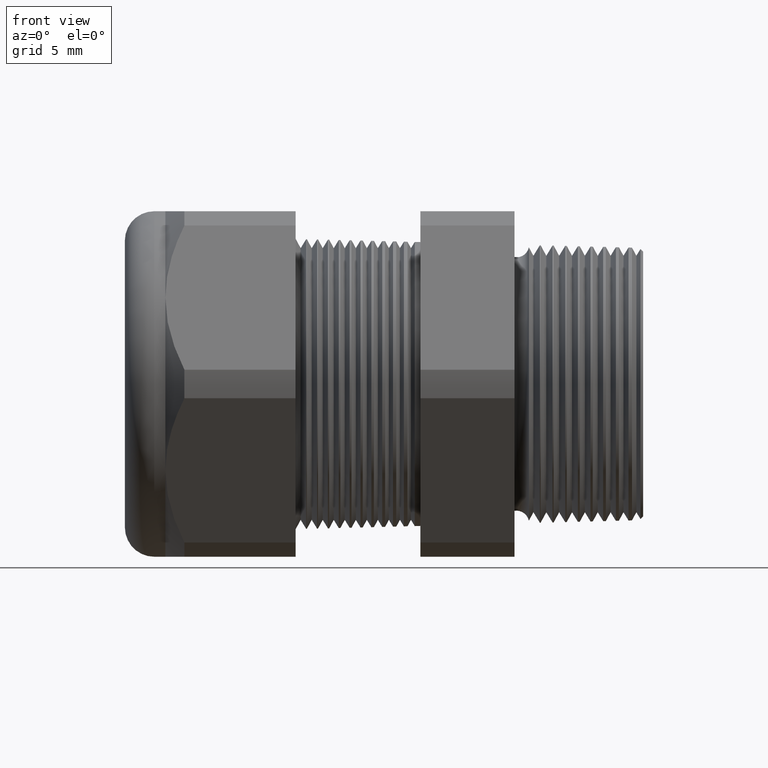
[diagram: clean part render]
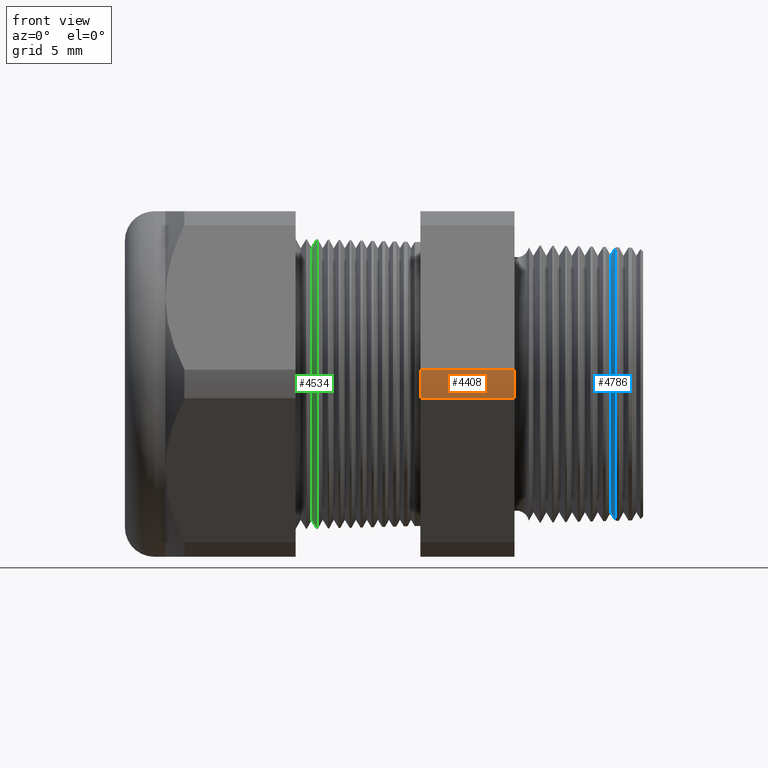
[diagram: same view with three faces highlighted in distinct colors, each labeled with its STEP entity id]
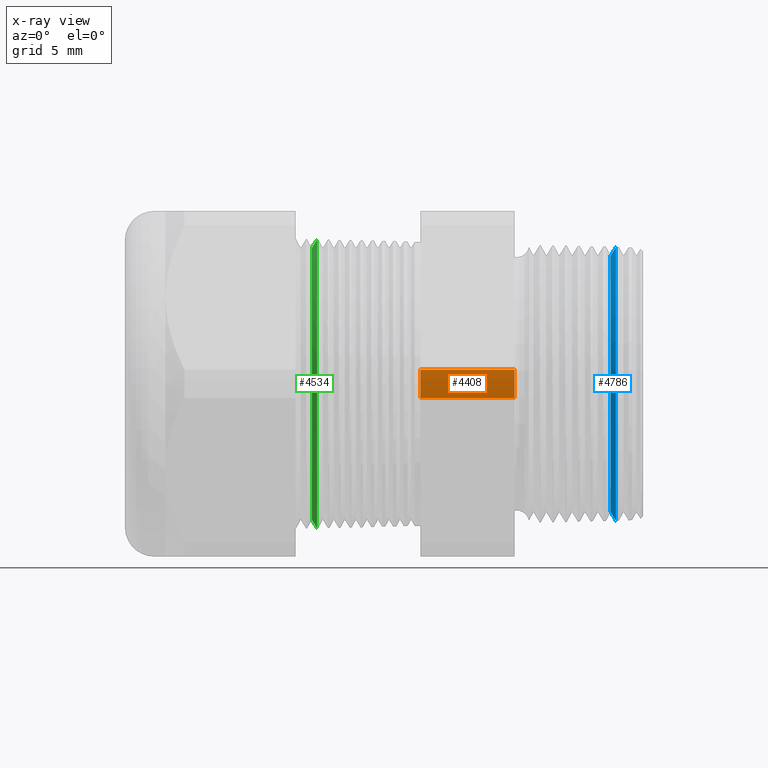
[diagram: x-ray of the same camera — body ghosted, the three highlighted faces saturated]
A machine part, front view with three faces highlighted in distinct colors.
The next image is the same camera in x-ray (body ghosted, the three faces saturated) — at least one of them is partly hidden behind the body in this view.
Their STEP definitions:

[orange] entity #4408 — the highlighted cylindrical surface (partial cylindrical patch) has radius 13.2512 mm, axis along (-1, 0, 0).
#2285 = CARTESIAN_POINT ( 'NONE',  ( -0.3100000000000000000, -0.5202473208008777700, -0.03890520787129495000 ) ) ;
#2286 = DIRECTION ( 'NONE',  ( 0.0000000000000000000, 0.0000000000000000000, -1.000000000000000000 ) ) ;
#2287 = DIRECTION ( 'NONE',  ( 1.000000000000000000, 0.0000000000000000000, 0.0000000000000000000 ) ) ;
#2288 = CARTESIAN_POINT ( 'NONE',  ( -0.3100000000000000000, 0.0000000000000000000, 0.0000000000000000000 ) ) ;
#2289 = AXIS2_PLACEMENT_3D ( 'NONE', #2288, #2287, #2286 ) ;
#2290 = CIRCLE ( 'NONE', #2289, 0.5217000000000000500 ) ;
#2291 = CARTESIAN_POINT ( 'NONE',  ( -0.3100000000000000000, -0.5202473208008777700, 0.03890520787129464500 ) ) ;
#2423 = CARTESIAN_POINT ( 'NONE',  ( -0.5659055118110235500, -0.5202473208008777700, 0.03890520787129464500 ) ) ;
#2424 = DIRECTION ( 'NONE',  ( 0.0000000000000000000, 0.0000000000000000000, 1.000000000000000000 ) ) ;
#2425 = DIRECTION ( 'NONE',  ( -1.000000000000000000, 0.0000000000000000000, 0.0000000000000000000 ) ) ;
#2426 = CARTESIAN_POINT ( 'NONE',  ( -0.5659055118110235500, 0.0000000000000000000, 0.0000000000000000000 ) ) ;
#2427 = AXIS2_PLACEMENT_3D ( 'NONE', #2426, #2425, #2424 ) ;
#2428 = CIRCLE ( 'NONE', #2427, 0.5217000000000000500 ) ;
#2429 = CARTESIAN_POINT ( 'NONE',  ( -0.5659055118110235500, -0.5202473208008777700, -0.03890520787129495000 ) ) ;
#2511 = DIRECTION ( 'NONE',  ( -1.000000000000000000, 0.0000000000000000000, 0.0000000000000000000 ) ) ;
#2512 = VECTOR ( 'NONE', #2511, 39.37007874015748100 ) ;
#2513 = CARTESIAN_POINT ( 'NONE',  ( 0.03999999999999984800, -0.5202473208008777700, -0.03890520787129495000 ) ) ;
#2514 = DIRECTION ( 'NONE',  ( 0.0000000000000000000, 0.0000000000000000000, 1.000000000000000000 ) ) ;
#2515 = DIRECTION ( 'NONE',  ( -1.000000000000000000, 0.0000000000000000000, 0.0000000000000000000 ) ) ;
#2516 = CARTESIAN_POINT ( 'NONE',  ( 0.03999999999999984800, 0.0000000000000000000, 0.0000000000000000000 ) ) ;
#2517 = AXIS2_PLACEMENT_3D ( 'NONE', #2516, #2515, #2514 ) ;
#2518 = LINE ( 'NONE', #2513, #2512 ) ;
#2519 = CYLINDRICAL_SURFACE ( 'NONE', #2517, 0.5217000000000000500 ) ;
#2520 = FACE_OUTER_BOUND ( 'NONE', #4409, .T. ) ;
#2612 = DIRECTION ( 'NONE',  ( -1.000000000000000000, 0.0000000000000000000, 0.0000000000000000000 ) ) ;
#2613 = VECTOR ( 'NONE', #2612, 39.37007874015748100 ) ;
#2614 = CARTESIAN_POINT ( 'NONE',  ( 0.03999999999999984800, -0.5202473208008777700, 0.03890520787129464500 ) ) ;
#2615 = LINE ( 'NONE', #2614, #2613 ) ;
#4269 = VERTEX_POINT ( 'NONE', #2291 ) ;
#4271 = EDGE_CURVE ( 'NONE', #4269, #4272, #2290, .T. ) ;
#4272 = VERTEX_POINT ( 'NONE', #2285 ) ;
#4335 = VERTEX_POINT ( 'NONE', #2429 ) ;
#4337 = EDGE_CURVE ( 'NONE', #4335, #4338, #2428, .T. ) ;
#4338 = VERTEX_POINT ( 'NONE', #2423 ) ;
#4408 = ADVANCED_FACE ( 'NONE', ( #2520 ), #2519, .T. ) ;
#4409 = EDGE_LOOP ( 'NONE', ( #4410, #4411, #4412, #4414 ) ) ;
#4410 = ORIENTED_EDGE ( 'NONE', *, *, #4482, .T. ) ;
#4411 = ORIENTED_EDGE ( 'NONE', *, *, #4337, .F. ) ;
#4412 = ORIENTED_EDGE ( 'NONE', *, *, #4413, .F. ) ;
#4413 = EDGE_CURVE ( 'NONE', #4272, #4335, #2518, .T. ) ;
#4414 = ORIENTED_EDGE ( 'NONE', *, *, #4271, .F. ) ;
#4482 = EDGE_CURVE ( 'NONE', #4269, #4338, #2615, .T. ) ;

[blue] entity #4786 — the highlighted conical surface has half-angle 58.5 deg.
#22 = DIRECTION ( 'NONE',  ( 0.0000000000000000000, 0.0000000000000000000, -1.000000000000000000 ) ) ;
#23 = DIRECTION ( 'NONE',  ( -1.000000000000000000, 0.0000000000000000000, 0.0000000000000000000 ) ) ;
#24 = CARTESIAN_POINT ( 'NONE',  ( -0.03424021830932415200, 0.0000000000000000000, 0.0000000000000000000 ) ) ;
#25 = AXIS2_PLACEMENT_3D ( 'NONE', #24, #23, #22 ) ;
#26 = CIRCLE ( 'NONE', #25, 0.3721870122913171800 ) ;
#1328 = CARTESIAN_POINT ( 'NONE',  ( -0.03424021830932415200, 0.0000000000000000000, 0.3721870122913171200 ) ) ;
#1329 = DIRECTION ( 'NONE',  ( 0.5224985647159352500, 1.044183048100722500E-016, 0.8526401643541005000 ) ) ;
#1330 = VECTOR ( 'NONE', #1329, 39.37007874015748900 ) ;
#1331 = CARTESIAN_POINT ( 'NONE',  ( -0.04847073567907520000, 4.273587704713848000E-017, 0.3489649185127733400 ) ) ;
#1332 = LINE ( 'NONE', #1331, #1330 ) ;
#1333 = CARTESIAN_POINT ( 'NONE',  ( -0.04847073567907520000, 4.420147533535343700E-017, -0.3489649185127733400 ) ) ;
#1334 = CARTESIAN_POINT ( 'NONE',  ( -0.04847073567907520000, 0.0000000000000000000, 0.3489649185127733400 ) ) ;
#1414 = CARTESIAN_POINT ( 'NONE',  ( -0.03424021830932415200, 4.557976332867780800E-017, -0.3721870122913171200 ) ) ;
#1416 = DIRECTION ( 'NONE',  ( 0.5224985647159352500, 0.0000000000000000000, -0.8526401643541005000 ) ) ;
#1417 = VECTOR ( 'NONE', #1416, 39.37007874015748900 ) ;
#1418 = CARTESIAN_POINT ( 'NONE',  ( -0.04847073567907520000, 0.0000000000000000000, -0.3489649185127733400 ) ) ;
#1419 = LINE ( 'NONE', #1418, #1417 ) ;
#2985 = DIRECTION ( 'NONE',  ( 0.0000000000000000000, 0.0000000000000000000, -1.000000000000000000 ) ) ;
#2986 = DIRECTION ( 'NONE',  ( 1.000000000000000000, 0.0000000000000000000, 0.0000000000000000000 ) ) ;
#2987 = CARTESIAN_POINT ( 'NONE',  ( -0.04847073567907520000, 0.0000000000000000000, 0.0000000000000000000 ) ) ;
#2988 = AXIS2_PLACEMENT_3D ( 'NONE', #2987, #2986, #2985 ) ;
#2990 = CONICAL_SURFACE ( 'NONE', #2988, 0.3489649185127733400, 1.021017612416698700 ) ;
#2991 = FACE_OUTER_BOUND ( 'NONE', #4787, .T. ) ;
#2992 = DIRECTION ( 'NONE',  ( 0.0000000000000000000, 0.0000000000000000000, -1.000000000000000000 ) ) ;
#2993 = DIRECTION ( 'NONE',  ( 1.000000000000000000, 0.0000000000000000000, 0.0000000000000000000 ) ) ;
#2994 = AXIS2_PLACEMENT_3D ( 'NONE', #3000, #2993, #2992 ) ;
#2995 = CIRCLE ( 'NONE', #2994, 0.3489649185127733400 ) ;
#3000 = CARTESIAN_POINT ( 'NONE',  ( -0.04847073567907520000, 0.0000000000000000000, 0.0000000000000000000 ) ) ;
#3112 = EDGE_CURVE ( 'NONE', #3841, #3788, #26, .T. ) ;
#3785 = VERTEX_POINT ( 'NONE', #1334 ) ;
#3786 = VERTEX_POINT ( 'NONE', #1333 ) ;
#3787 = EDGE_CURVE ( 'NONE', #3785, #3788, #1332, .T. ) ;
#3788 = VERTEX_POINT ( 'NONE', #1328 ) ;
#3837 = EDGE_CURVE ( 'NONE', #3786, #3841, #1419, .T. ) ;
#3841 = VERTEX_POINT ( 'NONE', #1414 ) ;
#4764 = ORIENTED_EDGE ( 'NONE', *, *, #4783, .T. ) ;
#4766 = ORIENTED_EDGE ( 'NONE', *, *, #3837, .T. ) ;
#4767 = ORIENTED_EDGE ( 'NONE', *, *, #3112, .T. ) ;
#4783 = EDGE_CURVE ( 'NONE', #3785, #3786, #2995, .T. ) ;
#4786 = ADVANCED_FACE ( 'NONE', ( #2991 ), #2990, .T. ) ;
#4787 = EDGE_LOOP ( 'NONE', ( #4788, #4764, #4766, #4767 ) ) ;
#4788 = ORIENTED_EDGE ( 'NONE', *, *, #3787, .F. ) ;

[green] entity #4534 — the highlighted conical surface has half-angle 58.5 deg.
#142 = DIRECTION ( 'NONE',  ( 0.0000000000000000000, 0.0000000000000000000, -1.000000000000000000 ) ) ;
#143 = DIRECTION ( 'NONE',  ( -1.000000000000000000, 0.0000000000000000000, 0.0000000000000000000 ) ) ;
#144 = AXIS2_PLACEMENT_3D ( 'NONE', #151, #143, #142 ) ;
#145 = CIRCLE ( 'NONE', #144, 0.3934711658259260600 ) ;
#151 = CARTESIAN_POINT ( 'NONE',  ( -0.8470492492376003900, 0.0000000000000000000, 0.0000000000000000000 ) ) ;
#703 = LINE ( 'NONE', #753, #752 ) ;
#704 = CARTESIAN_POINT ( 'NONE',  ( -0.8470492492376003900, 4.818632037854977400E-017, -0.3934711658259260600 ) ) ;
#751 = DIRECTION ( 'NONE',  ( 0.5224985647159348100, 0.0000000000000000000, -0.8526401643541007300 ) ) ;
#752 = VECTOR ( 'NONE', #751, 39.37007874015748900 ) ;
#753 = CARTESIAN_POINT ( 'NONE',  ( -0.8616586839320378200, 0.0000000000000000000, -0.3696307351718083900 ) ) ;
#1869 = CARTESIAN_POINT ( 'NONE',  ( -0.8616586839320378200, 0.0000000000000000000, 0.3696307351718083900 ) ) ;
#1870 = DIRECTION ( 'NONE',  ( 0.5224985647159348100, 1.044183048100722500E-016, 0.8526401643541007300 ) ) ;
#1871 = VECTOR ( 'NONE', #1870, 39.37007874015748900 ) ;
#1872 = CARTESIAN_POINT ( 'NONE',  ( -0.8616586839320378200, 4.526670966946381200E-017, 0.3696307351718083900 ) ) ;
#1877 = LINE ( 'NONE', #1872, #1871 ) ;
#1905 = CARTESIAN_POINT ( 'NONE',  ( -0.8616586839320378200, 4.677133258116980000E-017, -0.3696307351718083900 ) ) ;
#1906 = CARTESIAN_POINT ( 'NONE',  ( -0.8470492492376003900, 0.0000000000000000000, 0.3934711658259260600 ) ) ;
#2628 = CARTESIAN_POINT ( 'NONE',  ( -0.8616586839320378200, 0.0000000000000000000, 0.0000000000000000000 ) ) ;
#2629 = AXIS2_PLACEMENT_3D ( 'NONE', #2628, #2690, #2689 ) ;
#2630 = CONICAL_SURFACE ( 'NONE', #2629, 0.3696307351718083900, 1.021017612416699200 ) ;
#2631 = FACE_OUTER_BOUND ( 'NONE', #4535, .T. ) ;
#2632 = DIRECTION ( 'NONE',  ( 0.0000000000000000000, 0.0000000000000000000, -1.000000000000000000 ) ) ;
#2633 = DIRECTION ( 'NONE',  ( 1.000000000000000000, 0.0000000000000000000, 0.0000000000000000000 ) ) ;
#2634 = AXIS2_PLACEMENT_3D ( 'NONE', #2639, #2633, #2632 ) ;
#2635 = CIRCLE ( 'NONE', #2634, 0.3696307351718083900 ) ;
#2639 = CARTESIAN_POINT ( 'NONE',  ( -0.8616586839320378200, 0.0000000000000000000, 0.0000000000000000000 ) ) ;
#2689 = DIRECTION ( 'NONE',  ( 0.0000000000000000000, 0.0000000000000000000, -1.000000000000000000 ) ) ;
#2690 = DIRECTION ( 'NONE',  ( 1.000000000000000000, 0.0000000000000000000, 0.0000000000000000000 ) ) ;
#3181 = EDGE_CURVE ( 'NONE', #3492, #4060, #145, .T. ) ;
#3492 = VERTEX_POINT ( 'NONE', #704 ) ;
#3495 = EDGE_CURVE ( 'NONE', #4063, #3492, #703, .T. ) ;
#4048 = EDGE_CURVE ( 'NONE', #4049, #4060, #1877, .T. ) ;
#4049 = VERTEX_POINT ( 'NONE', #1869 ) ;
#4060 = VERTEX_POINT ( 'NONE', #1906 ) ;
#4063 = VERTEX_POINT ( 'NONE', #1905 ) ;
#4531 = EDGE_CURVE ( 'NONE', #4049, #4063, #2635, .T. ) ;
#4534 = ADVANCED_FACE ( 'NONE', ( #2631 ), #2630, .T. ) ;
#4535 = EDGE_LOOP ( 'NONE', ( #4536, #4537, #4538, #4539 ) ) ;
#4536 = ORIENTED_EDGE ( 'NONE', *, *, #4048, .F. ) ;
#4537 = ORIENTED_EDGE ( 'NONE', *, *, #4531, .T. ) ;
#4538 = ORIENTED_EDGE ( 'NONE', *, *, #3495, .T. ) ;
#4539 = ORIENTED_EDGE ( 'NONE', *, *, #3181, .T. ) ;